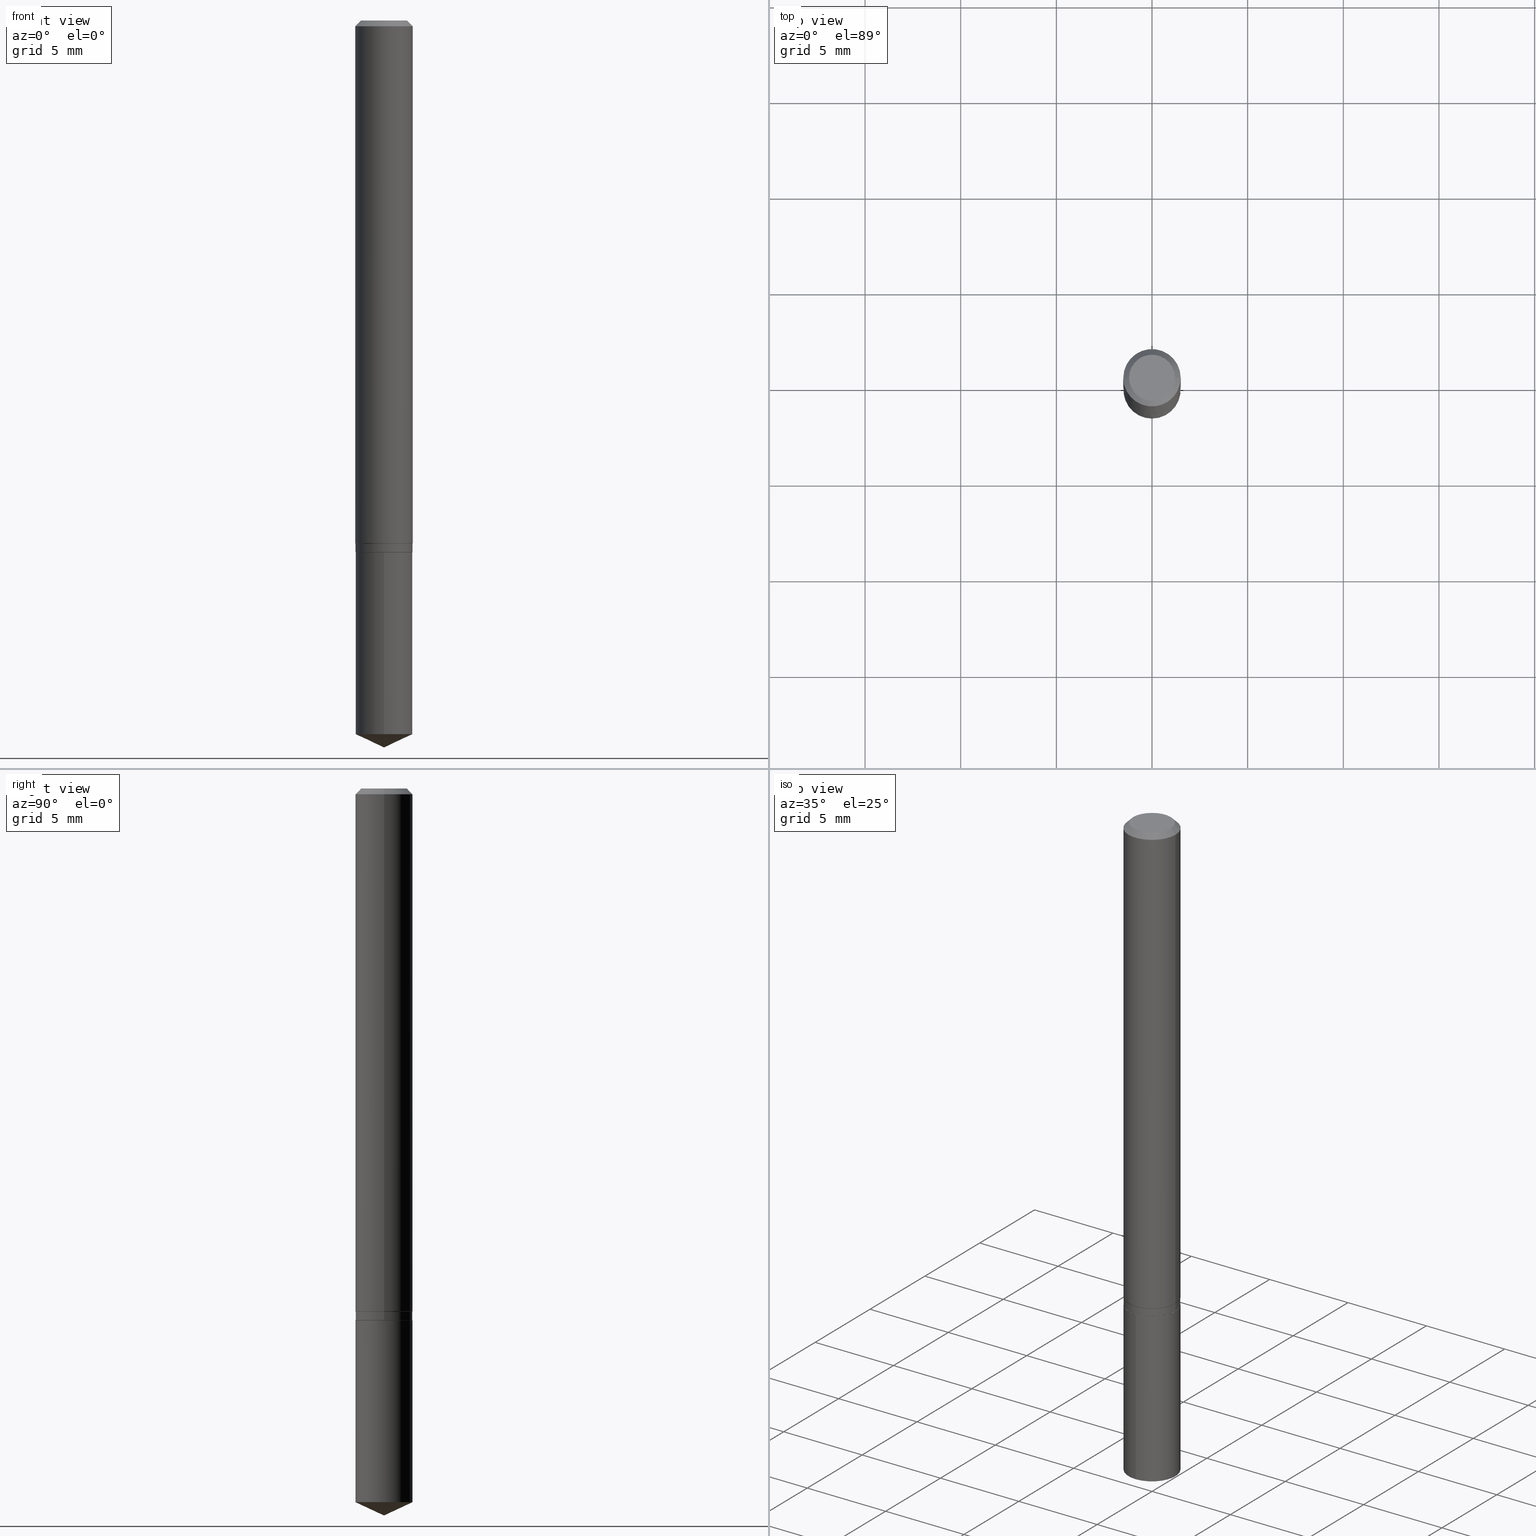
[diagram: canonical four-view strip — front | top / right | iso, engineering-drawing reading convention]
A machine part, canonical four-view strip (front | top / right | iso — engineering-drawing reading convention). The complete STEP part file that produces these views, byte-faithful:
ISO-10303-21;
HEADER;
FILE_DESCRIPTION (( 'STEP AP203' ),
    '1' );
FILE_NAME ('08062.STEP',
    '2024-04-24T10:20:33',
    ( '' ),
    ( '' ),
    'SwSTEP 2.0',
    'SolidWorks 2023',
    '' );
FILE_SCHEMA (( 'CONFIG_CONTROL_DESIGN' ));
ENDSEC;

DATA;
#1 = ORIENTED_EDGE ( 'NONE', *, *, #60, .F. ) ;
#2 = AXIS2_PLACEMENT_3D ( 'NONE', #42, #465, #420 ) ;
#3 = AXIS2_PLACEMENT_3D ( 'NONE', #48, #81, #14 ) ;
#4 = DIRECTION ( 'NONE',  ( 1.000000000000000000, -6.982962677686266711E-15, 4.876176775795935793E-29 ) ) ;
#5 = VERTEX_POINT ( 'NONE', #102 ) ;
#6 = FACE_OUTER_BOUND ( 'NONE', #391, .T. ) ;
#7 = CARTESIAN_POINT ( 'NONE',  ( 2.675342873966538993E-29, -3.819680584694400481E-15, -1.093999999999999861 ) ) ;
#8 = EDGE_CURVE ( 'NONE', #5, #421, #255, .T. ) ;
#9 = CC_DESIGN_APPROVAL ( #419, ( #370 ) ) ;
#10 = LINE ( 'NONE', #344, #199 ) ;
#11 = FACE_OUTER_BOUND ( 'NONE', #142, .T. ) ;
#12 = FACE_OUTER_BOUND ( 'NONE', #114, .T. ) ;
#13 =( NAMED_UNIT ( * ) SI_UNIT ( $, .STERADIAN. ) SOLID_ANGLE_UNIT ( ) );
#14 = DIRECTION ( 'NONE',  ( 1.000000000000000000, -6.982962677686266711E-15, 0.000000000000000000 ) ) ;
#15 = EDGE_CURVE ( 'NONE', #5, #416, #272, .T. ) ;
#16 = EDGE_LOOP ( 'NONE', ( #341, #265, #144, #307 ) ) ;
#17 = CARTESIAN_POINT ( 'NONE',  ( 0.05815000000000000030, -4.227485605071278703E-15, -1.094499999999999806 ) ) ;
#18 = PERSON ( 'UNSPECIFIED', 'UNSPECIFIED', 'UNSPECIFIED', ('UNSPECIFIED'), ('UNSPECIFIED'), ('UNSPECIFIED') ) ;
#19 = CARTESIAN_POINT ( 'NONE',  ( 4.132873053354867254E-48, -5.900647395337818946E-34, -1.690012582823346072E-19 ) ) ;
#20 = AXIS2_PLACEMENT_3D ( 'NONE', #448, #99, #246 ) ;
#21 = CIRCLE ( 'NONE', #425, 0.04724000000000000421 ) ;
#22 = AXIS2_PLACEMENT_3D ( 'NONE', #484, #192, #224 ) ;
#23 = CARTESIAN_POINT ( 'NONE',  ( 0.04724000000000000421, -3.852183633974369345E-16, -3.380025165621689721E-19 ) ) ;
#24 = CARTESIAN_POINT ( 'NONE',  ( -4.095507610462727564E-16, -0.05865000000000382407, -1.094499999999999806 ) ) ;
#25 = DIRECTION ( 'NONE',  ( -6.982962677686266711E-15, -1.000000000000000000, 4.657882342138556398E-15 ) ) ;
#26 = CARTESIAN_POINT ( 'NONE',  ( 0.000000000000000000, 0.000000000000000000, 0.000000000000000000 ) ) ;
#27 = EDGE_CURVE ( 'NONE', #421, #469, #29, .T. ) ;
#28 = FACE_OUTER_BOUND ( 'NONE', #45, .T. ) ;
#29 = CIRCLE ( 'NONE', #408, 0.05904999999999999832 ) ;
#30 = AXIS2_PLACEMENT_3D ( 'NONE', #374, #157, #118 ) ;
#31 = DATE_AND_TIME ( #127, #182 ) ;
#32 = DIRECTION ( 'NONE',  ( -2.445468806185136597E-29, 3.491481338843145583E-15, 1.000000000000000000 ) ) ;
#33 = EDGE_CURVE ( 'NONE', #35, #395, #451, .T. ) ;
#34 = ORIENTED_EDGE ( 'NONE', *, *, #233, .T. ) ;
#35 = VERTEX_POINT ( 'NONE', #50 ) ;
#36 = VERTEX_POINT ( 'NONE', #342 ) ;
#37 = DIRECTION ( 'NONE',  ( -2.445468806185136597E-29, 3.491481338843145583E-15, 1.000000000000000000 ) ) ;
#38 = EDGE_CURVE ( 'NONE', #338, #345, #73, .T. ) ;
#39 = UNCERTAINTY_MEASURE_WITH_UNIT (LENGTH_MEASURE( 1.000000000000000082E-05 ), #277, 'distance_accuracy_value', 'NONE');
#40 = MANIFOLD_SOLID_BREP ( 'Body-Move/Copy2[2]', #375 ) ;
#41 = CONICAL_SURFACE ( 'NONE', #386, 84.42940631927464779, 1.134464013796317339 ) ;
#42 = CARTESIAN_POINT ( 'NONE',  ( 2.629874711847569315E-29, -3.754764099500085778E-15, -1.075407179676971969 ) ) ;
#43 = ORIENTED_EDGE ( 'NONE', *, *, #325, .F. ) ;
#44 = MANIFOLD_SOLID_BREP ( 'Body-Move/Copy2[1]', #293 ) ;
#45 = EDGE_LOOP ( 'NONE', ( #429, #105 ) ) ;
#46 = ADVANCED_FACE ( 'NONE', ( #120 ), #227, .T. ) ;
#47 = DIRECTION ( 'NONE',  ( 1.000000000000000000, -6.982962677686266711E-15, 4.876176775795936353E-29 ) ) ;
#48 = CARTESIAN_POINT ( 'NONE',  ( 2.676565608369631234E-29, -3.821426325363821984E-15, -1.094499999999999806 ) ) ;
#49 = LOCAL_TIME ( 6, 20, 33.00000000000000000, #230 ) ;
#50 = CARTESIAN_POINT ( 'NONE',  ( 0.05865000000000000074, -4.169527014846483207E-15, -1.076899999999999968 ) ) ;
#51 = DIRECTION ( 'NONE',  ( -6.982962677686266711E-15, -1.000000000000000000, 2.328941171069278199E-15 ) ) ;
#52 = DIRECTION ( 'NONE',  ( -2.445458899330790108E-29, 3.491495526022433205E-15, 1.000000000000000000 ) ) ;
#53 = ORIENTED_EDGE ( 'NONE', *, *, #412, .T. ) ;
#54 = APPROVAL_ROLE ( '' ) ;
#55 = FACE_OUTER_BOUND ( 'NONE', #76, .T. ) ;
#56 = CIRCLE ( 'NONE', #252, 0.05865000000000000074 ) ;
#57 = AXIS2_PLACEMENT_3D ( 'NONE', #406, #52, #326 ) ;
#58 = EDGE_LOOP ( 'NONE', ( #43, #454, #34, #466 ) ) ;
#59 = FACE_OUTER_BOUND ( 'NONE', #424, .T. ) ;
#60 = EDGE_CURVE ( 'NONE', #254, #110, #259, .T. ) ;
#61 = ORIENTED_EDGE ( 'NONE', *, *, #27, .T. ) ;
#62 = CARTESIAN_POINT ( 'NONE',  ( 2.675342873966538993E-29, -3.819680584694400481E-15, -1.093999999999999861 ) ) ;
#63 = ADVANCED_FACE ( 'NONE', ( #381 ), #93, .T. ) ;
#64 = AXIS2_PLACEMENT_3D ( 'NONE', #168, #138, #292 ) ;
#65 = CIRCLE ( 'NONE', #301, 0.05865000000000000074 ) ;
#66 = ORGANIZATION ( 'UNSPECIFIED', 'UNSPECIFIED', '' ) ;
#67 = ORIENTED_EDGE ( 'NONE', *, *, #173, .F. ) ;
#68 = ORIENTED_EDGE ( 'NONE', *, *, #131, .T. ) ;
#69 = CC_DESIGN_PERSON_AND_ORGANIZATION_ASSIGNMENT ( #121, #226, ( #244 ) ) ;
#70 = DIRECTION ( 'NONE',  ( -2.445458899330790108E-29, 3.491495526022433205E-15, 1.000000000000000000 ) ) ;
#71 = ORIENTED_EDGE ( 'NONE', *, *, #371, .F. ) ;
#72 = CARTESIAN_POINT ( 'NONE',  ( 2.888098660104663766E-31, -4.123439461173779647E-17, -0.01181000000000007044 ) ) ;
#73 = CIRCLE ( 'NONE', #357, 0.05905000000000013016 ) ;
#74 = CYLINDRICAL_SURFACE ( 'NONE', #436, 0.05905000000000006771 ) ;
#75 = ADVANCED_FACE ( 'NONE', ( #6 ), #328, .T. ) ;
#76 = EDGE_LOOP ( 'NONE', ( #197, #410 ) ) ;
#77 = CARTESIAN_POINT ( 'NONE',  ( 2.888098660104663766E-31, -4.123439461173779647E-17, -0.01181000000000007044 ) ) ;
#78 = APPROVAL ( #245, 'UNSPECIFIED' ) ;
#79 = ORIENTED_EDGE ( 'NONE', *, *, #449, .F. ) ;
#80 = CARTESIAN_POINT ( 'NONE',  ( 2.676565608369631794E-29, -3.821426325363822773E-15, -1.094499999999999806 ) ) ;
#81 = DIRECTION ( 'NONE',  ( -2.445468806185136597E-29, 3.491481338843145583E-15, 1.000000000000000000 ) ) ;
#82 = AXIS2_PLACEMENT_3D ( 'NONE', #72, #185, #225 ) ;
#83 = CARTESIAN_POINT ( 'NONE',  ( 4.167333145233346575E-16, 0.05864999999999617741, -1.094500000000000028 ) ) ;
#84 = ORIENTED_EDGE ( 'NONE', *, *, #33, .T. ) ;
#85 = EDGE_CURVE ( 'NONE', #258, #110, #141, .T. ) ;
#86 = CARTESIAN_POINT ( 'NONE',  ( 2.676565608369631794E-29, -3.821426325363822773E-15, -1.094499999999999806 ) ) ;
#87 = LINE ( 'NONE', #318, #418 ) ;
#88 = ORIENTED_EDGE ( 'NONE', *, *, #15, .F. ) ;
#89 = DIRECTION ( 'NONE',  ( 1.000000000000000000, -6.982962677686266711E-15, 0.000000000000000000 ) ) ;
#90 = APPLICATION_PROTOCOL_DEFINITION ( 'international standard', 'config_control_design', 1994, #329 ) ;
#91 = VECTOR ( 'NONE', #361, 39.37007874015748143 ) ;
#92 = DIRECTION ( 'NONE',  ( -2.445468806185136597E-29, 3.491481338843145583E-15, 1.000000000000000000 ) ) ;
#93 = CONICAL_SURFACE ( 'NONE', #82, 0.05904999999999999832, 0.7853981633974452814 ) ;
#94 = COORDINATED_UNIVERSAL_TIME_OFFSET ( 5, 0, .BEHIND. ) ;
#95 = AXIS2_PLACEMENT_3D ( 'NONE', #450, #166, #283 ) ;
#96 = ADVANCED_FACE ( 'NONE', ( #348 ), #41, .T. ) ;
#97 = CARTESIAN_POINT ( 'NONE',  ( 4.471846062347433444E-29, -1.250482534249861610E-15, -1.094499999999999806 ) ) ;
#98 = SECURITY_CLASSIFICATION_LEVEL ( 'unclassified' ) ;
#99 = DIRECTION ( 'NONE',  ( -2.445468806185136597E-29, 3.491481338843145583E-15, 1.000000000000000000 ) ) ;
#100 = PRODUCT_DEFINITION_SHAPE ( 'NONE', 'NONE',  #244 ) ;
#101 = AXIS2_PLACEMENT_3D ( 'NONE', #215, #37, #4 ) ;
#102 = CARTESIAN_POINT ( 'NONE',  ( -0.04724000000000000421, 3.504923541997677355E-16, -3.380025165670481712E-19 ) ) ;
#103 = CIRCLE ( 'NONE', #488, 0.05815000000000000030 ) ;
#104 = DIRECTION ( 'NONE',  ( -2.445468806185136597E-29, 3.491481338843145583E-15, 1.000000000000000000 ) ) ;
#105 = ORIENTED_EDGE ( 'NONE', *, *, #208, .T. ) ;
#106 = ORIENTED_EDGE ( 'NONE', *, *, #367, .T. ) ;
#107 = DIRECTION ( 'NONE',  ( 1.000000000000000000, -6.982962677686267499E-15, 0.000000000000000000 ) ) ;
#108 = AXIS2_PLACEMENT_3D ( 'NONE', #7, #151, #308 ) ;
#109 = ADVANCED_FACE ( 'NONE', ( #263 ), #452, .T. ) ;
#110 = VERTEX_POINT ( 'NONE', #312 ) ;
#111 = ORIENTED_EDGE ( 'NONE', *, *, #334, .F. ) ;
#112 = EDGE_CURVE ( 'NONE', #345, #338, #426, .T. ) ;
#113 = FACE_OUTER_BOUND ( 'NONE', #339, .T. ) ;
#114 = EDGE_LOOP ( 'NONE', ( #207, #178, #337, #253 ) ) ;
#115 = AXIS2_PLACEMENT_3D ( 'NONE', #444, #232, #331 ) ;
#116 = APPROVAL_PERSON_ORGANIZATION ( #236, #415, #445 ) ;
#117 = DIRECTION ( 'NONE',  ( -6.982962677686267499E-15, -1.000000000000000000, 3.520397390770440854E-15 ) ) ;
#118 = DIRECTION ( 'NONE',  ( -6.982962677686266711E-15, -1.000000000000000000, 2.328941171069278199E-15 ) ) ;
#119 = DIRECTION ( 'NONE',  ( 1.000000000000000000, -6.982962677686266711E-15, 0.000000000000000000 ) ) ;
#120 = FACE_OUTER_BOUND ( 'NONE', #368, .T. ) ;
#121 = PERSON_AND_ORGANIZATION ( #18, #66 ) ;
#122 = ADVANCED_FACE ( 'NONE', ( #113 ), #74, .T. ) ;
#123 = AXIS2_PLACEMENT_3D ( 'NONE', #97, #130, #474 ) ;
#124 = PRODUCT_DEFINITION_FORMATION_WITH_SPECIFIED_SOURCE ( 'ANY', '', #291, .NOT_KNOWN. ) ;
#125 = PERSON_AND_ORGANIZATION_ROLE ( 'creator' ) ;
#126 = LINE ( 'NONE', #169, #181 ) ;
#127 = CALENDAR_DATE ( 2024, 24, 4 ) ;
#128 = EDGE_LOOP ( 'NONE', ( #431, #382, #300, #456 ) ) ;
#129 = LINE ( 'NONE', #17, #411 ) ;
#130 = DIRECTION ( 'NONE',  ( -2.438088387897960049E-29, 3.491481338843145188E-15, 1.000000000000000000 ) ) ;
#131 = EDGE_CURVE ( 'NONE', #395, #345, #10, .T. ) ;
#132 = LINE ( 'NONE', #332, #146 ) ;
#133 = FACE_OUTER_BOUND ( 'NONE', #470, .T. ) ;
#134 = CONICAL_SURFACE ( 'NONE', #409, 0.05865000000000000074, 0.2617993877991601770 ) ;
#135 = AXIS2_PLACEMENT_3D ( 'NONE', #413, #104, #414 ) ;
#136 = CARTESIAN_POINT ( 'NONE',  ( 2.888098660104663766E-31, -4.123439461173779647E-17, -0.01181000000000007044 ) ) ;
#137 = VERTEX_POINT ( 'NONE', #471 ) ;
#138 = DIRECTION ( 'NONE',  ( -2.445468806185136597E-29, 3.491481338843145583E-15, 1.000000000000000000 ) ) ;
#139 = CC_DESIGN_DATE_AND_TIME_ASSIGNMENT ( #290, #206, ( #370 ) ) ;
#140 = CARTESIAN_POINT ( 'NONE',  ( -0.05905000000000013016, -3.335188614033745102E-15, -1.075407179676971969 ) ) ;
#141 = CIRCLE ( 'NONE', #108, 0.05865000000000000074 ) ;
#142 = EDGE_LOOP ( 'NONE', ( #1, #220, #184, #372 ) ) ;
#143 = EDGE_CURVE ( 'NONE', #231, #248, #369, .T. ) ;
#144 = ORIENTED_EDGE ( 'NONE', *, *, #449, .T. ) ;
#145 = AXIS2_PLACEMENT_3D ( 'NONE', #392, #195, #89 ) ;
#146 = VECTOR ( 'NONE', #321, 39.37007874015748143 ) ;
#147 = ORIENTED_EDGE ( 'NONE', *, *, #208, .F. ) ;
#148 = DIRECTION ( 'NONE',  ( -2.445458899330790108E-29, 3.491495526022433599E-15, 1.000000000000000000 ) ) ;
#149 = EDGE_CURVE ( 'NONE', #373, #248, #306, .T. ) ;
#150 = CARTESIAN_POINT ( 'NONE',  ( -9.261924752013118283E-28, 1.322368428517963298E-13, 37.87397874015748300 ) ) ;
#151 = DIRECTION ( 'NONE',  ( -2.445468806185136597E-29, 3.491481338843145583E-15, 1.000000000000000000 ) ) ;
#152 = CARTESIAN_POINT ( 'NONE',  ( 0.05865000000000000074, -4.095507610462995284E-16, 2.859877679004316508E-30 ) ) ;
#153 = AXIS2_PLACEMENT_3D ( 'NONE', #86, #242, #51 ) ;
#154 = DIRECTION ( 'NONE',  ( -0.2588190451025311201, 5.211531920934610206E-15, 0.9659258262890655367 ) ) ;
#155 = ORIENTED_EDGE ( 'NONE', *, *, #334, .T. ) ;
#156 = CARTESIAN_POINT ( 'NONE',  ( -0.05865000000000000074, -3.373095104723992970E-15, -1.076899999999999968 ) ) ;
#157 = DIRECTION ( 'NONE',  ( -2.445458899330790108E-29, 3.491495526022433205E-15, 1.000000000000000000 ) ) ;
#158 = ADVANCED_FACE ( 'NONE', ( #432 ), #189, .T. ) ;
#159 = DIRECTION ( 'NONE',  ( 1.000000000000000000, -6.982962677686266711E-15, 4.876176775795935793E-29 ) ) ;
#160 = CARTESIAN_POINT ( 'NONE',  ( -0.05865000000000000074, 4.167333145232987643E-16, -2.884955430434502470E-30 ) ) ;
#161 = CARTESIAN_POINT ( 'NONE',  ( 8.265746106709734507E-48, -1.180129479067563789E-33, -3.380025165646692144E-19 ) ) ;
#162 = PERSON_AND_ORGANIZATION ( #18, #66 ) ;
#163 = PERSON_AND_ORGANIZATION ( #18, #66 ) ;
#164 = ADVANCED_FACE ( 'NONE', ( #12 ), #472, .T. ) ;
#165 = PERSON_AND_ORGANIZATION ( #18, #66 ) ;
#166 = DIRECTION ( 'NONE',  ( 0.000000000000000000, 0.000000000000000000, 1.000000000000000000 ) ) ;
#167 = CARTESIAN_POINT ( 'NONE',  ( 2.633525357380773366E-29, -3.759976253800183481E-15, -1.076899999999999968 ) ) ;
#168 = CARTESIAN_POINT ( 'NONE',  ( 8.265746106709734507E-48, -1.180129479067563789E-33, -3.380025165646692144E-19 ) ) ;
#169 = CARTESIAN_POINT ( 'NONE',  ( -0.05905000000000006771, 4.195754854663396409E-16, -2.904631170795525045E-30 ) ) ;
#170 = PLANE ( 'NONE',  #22 ) ;
#171 = PERSON_AND_ORGANIZATION ( #18, #66 ) ;
#172 = APPROVAL_DATE_TIME ( #31, #419 ) ;
#173 = EDGE_CURVE ( 'NONE', #137, #373, #65, .T. ) ;
#174 = CIRCLE ( 'NONE', #284, 0.05865000000000000074 ) ;
#175 = CC_DESIGN_SECURITY_CLASSIFICATION ( #370, ( #124 ) ) ;
#176 = EDGE_CURVE ( 'NONE', #395, #35, #56, .T. ) ;
#177 = LINE ( 'NONE', #350, #349 ) ;
#178 = ORIENTED_EDGE ( 'NONE', *, *, #399, .T. ) ;
#179 = DIRECTION ( 'NONE',  ( -2.445458899330790108E-29, 3.491495526022433205E-15, 1.000000000000000000 ) ) ;
#180 = ADVANCED_FACE ( 'NONE', ( #59 ), #438, .F. ) ;
#181 = VECTOR ( 'NONE', #404, 39.37007874015748143 ) ;
#182 = LOCAL_TIME ( 6, 20, 33.00000000000000000, #359 ) ;
#183 = DIRECTION ( 'NONE',  ( -2.445468806185136597E-29, 3.491481338843145583E-15, 1.000000000000000000 ) ) ;
#184 = ORIENTED_EDGE ( 'NONE', *, *, #379, .T. ) ;
#185 = DIRECTION ( 'NONE',  ( 2.445468806185136597E-29, -3.491481338843145583E-15, -1.000000000000000000 ) ) ;
#186 = DIRECTION ( 'NONE',  ( -0.7071067811866199593, 7.493145998870616062E-15, 0.7071067811864750752 ) ) ;
#187 = AXIS2_PLACEMENT_3D ( 'NONE', #19, #238, #478 ) ;
#188 = EDGE_CURVE ( 'NONE', #36, #373, #483, .T. ) ;
#189 = CYLINDRICAL_SURFACE ( 'NONE', #210, 0.05865000000000000074 ) ;
#190 = CALENDAR_DATE ( 2024, 24, 4 ) ;
#191 = CYLINDRICAL_SURFACE ( 'NONE', #219, 0.05865000000000000074 ) ;
#192 = DIRECTION ( 'NONE',  ( 2.445458899330789267E-29, -3.491495526022433599E-15, -1.000000000000000000 ) ) ;
#193 = DATE_AND_TIME ( #190, #49 ) ;
#194 = ORIENTED_EDGE ( 'NONE', *, *, #38, .F. ) ;
#195 = DIRECTION ( 'NONE',  ( -2.445468806185136597E-29, 3.491481338843145583E-15, 1.000000000000000000 ) ) ;
#196 = APPLICATION_PROTOCOL_DEFINITION ( 'international standard', 'config_control_design', 1994, #256 ) ;
#197 = ORIENTED_EDGE ( 'NONE', *, *, #15, .T. ) ;
#198 = AXIS2_PLACEMENT_3D ( 'NONE', #385, #430, #377 ) ;
#199 = VECTOR ( 'NONE', #154, 39.37007874015748143 ) ;
#200 = CYLINDRICAL_SURFACE ( 'NONE', #115, 0.05865000000000000074 ) ;
#201 = CALENDAR_DATE ( 2024, 24, 4 ) ;
#202 = CARTESIAN_POINT ( 'NONE',  ( 0.05865000000000000074, -4.229231345740700206E-15, -1.093999999999999861 ) ) ;
#203 = CALENDAR_DATE ( 2024, 24, 4 ) ;
#204 = ORIENTED_EDGE ( 'NONE', *, *, #173, .T. ) ;
#205 = ADVANCED_FACE ( 'NONE', ( #271 ), #134, .T. ) ;
#206 = DATE_TIME_ROLE ( 'classification_date' ) ;
#207 = ORIENTED_EDGE ( 'NONE', *, *, #85, .T. ) ;
#208 = EDGE_CURVE ( 'NONE', #248, #231, #335, .T. ) ;
#209 = ORIENTED_EDGE ( 'NONE', *, *, #176, .F. ) ;
#210 = AXIS2_PLACEMENT_3D ( 'NONE', #80, #179, #351 ) ;
#211 = LOCAL_TIME ( 6, 20, 33.00000000000000000, #398 ) ;
#212 = ORIENTED_EDGE ( 'NONE', *, *, #346, .F. ) ;
#213 = PRODUCT_RELATED_PRODUCT_CATEGORY ( 'detail', '', ( #291 ) ) ;
#214 = ORIENTED_EDGE ( 'NONE', *, *, #218, .T. ) ;
#215 = CARTESIAN_POINT ( 'NONE',  ( 0.000000000000000000, 0.000000000000000000, 0.000000000000000000 ) ) ;
#216 = ORIENTED_EDGE ( 'NONE', *, *, #399, .F. ) ;
#217 = CARTESIAN_POINT ( 'NONE',  ( 2.629874711847569315E-29, -3.754764099500085778E-15, -1.075407179676971969 ) ) ;
#218 = EDGE_CURVE ( 'NONE', #345, #421, #126, .T. ) ;
#219 = AXIS2_PLACEMENT_3D ( 'NONE', #353, #92, #159 ) ;
#220 = ORIENTED_EDGE ( 'NONE', *, *, #422, .T. ) ;
#221 = CARTESIAN_POINT ( 'NONE',  ( 4.167333145233254377E-16, 0.05864999999999617741, -1.094500000000000028 ) ) ;
#222 = ORIENTED_EDGE ( 'NONE', *, *, #412, .F. ) ;
#223 = CARTESIAN_POINT ( 'NONE',  ( 0.000000000000000000, 0.000000000000000000, 0.000000000000000000 ) ) ;
#224 = DIRECTION ( 'NONE',  ( 6.982962677686265922E-15, 1.000000000000000000, -3.491495526022433599E-15 ) ) ;
#225 = DIRECTION ( 'NONE',  ( -1.000000000000000000, 6.982962677686266711E-15, 0.000000000000000000 ) ) ;
#226 = PERSON_AND_ORGANIZATION_ROLE ( 'creator' ) ;
#227 = CONICAL_SURFACE ( 'NONE', #309, 84.42940631927464779, 1.134464013796317339 ) ;
#228 = CARTESIAN_POINT ( 'NONE',  ( -0.05904999999999999832, -1.478423761589571274E-15, -0.01181000000000007044 ) ) ;
#229 = APPROVAL_PERSON_ORGANIZATION ( #165, #419, #286 ) ;
#230 = COORDINATED_UNIVERSAL_TIME_OFFSET ( 5, 0, .BEHIND. ) ;
#231 = VERTEX_POINT ( 'NONE', #317 ) ;
#232 = DIRECTION ( 'NONE',  ( -2.445458899330790108E-29, 3.491495526022433205E-15, 1.000000000000000000 ) ) ;
#233 = EDGE_CURVE ( 'NONE', #469, #421, #365, .T. ) ;
#234 = LINE ( 'NONE', #160, #273 ) ;
#235 = FACE_OUTER_BOUND ( 'NONE', #482, .T. ) ;
#236 = PERSON_AND_ORGANIZATION ( #18, #66 ) ;
#237 = CONICAL_SURFACE ( 'NONE', #135, 0.05815000000000000030, 0.7853981633975507526 ) ;
#238 = DIRECTION ( 'NONE',  ( 2.438088387897960049E-29, -3.491481338843145188E-15, -1.000000000000000000 ) ) ;
#239 = CARTESIAN_POINT ( 'NONE',  ( 0.05815000000000000030, -4.227485605071278703E-15, -1.094499999999999806 ) ) ;
#240 = PERSON_AND_ORGANIZATION_ROLE ( 'classification_officer' ) ;
#241 = EDGE_LOOP ( 'NONE', ( #212, #88, #262, #61 ) ) ;
#242 = DIRECTION ( 'NONE',  ( -2.445458899330790108E-29, 3.491495526022433205E-15, 1.000000000000000000 ) ) ;
#243 = ORIENTED_EDGE ( 'NONE', *, *, #422, .F. ) ;
#244 = PRODUCT_DEFINITION ( 'UNKNOWN', '', #124, #458 ) ;
#245 = APPROVAL_STATUS ( 'not_yet_approved' ) ;
#246 = DIRECTION ( 'NONE',  ( 1.000000000000000000, -6.982962677686267499E-15, 0.000000000000000000 ) ) ;
#247 =( GEOMETRIC_REPRESENTATION_CONTEXT ( 3 ) GLOBAL_UNCERTAINTY_ASSIGNED_CONTEXT ( ( #39 ) ) GLOBAL_UNIT_ASSIGNED_CONTEXT ( ( #277, #387, #13 ) ) REPRESENTATION_CONTEXT ( 'NONE', 'WORKASPACE' ) );
#248 = VERTEX_POINT ( 'NONE', #83 ) ;
#249 = ORIENTED_EDGE ( 'NONE', *, *, #340, .T. ) ;
#250 = ORIENTED_EDGE ( 'NONE', *, *, #27, .F. ) ;
#251 = LINE ( 'NONE', #295, #296 ) ;
#252 = AXIS2_PLACEMENT_3D ( 'NONE', #167, #281, #439 ) ;
#253 = ORIENTED_EDGE ( 'NONE', *, *, #490, .F. ) ;
#254 = VERTEX_POINT ( 'NONE', #480 ) ;
#255 = LINE ( 'NONE', #333, #91 ) ;
#256 = APPLICATION_CONTEXT ( 'configuration controlled 3d designs of mechanical parts and assemblies' ) ;
#257 = DIRECTION ( 'NONE',  ( 2.445468806185136597E-29, -3.491481338843145583E-15, -1.000000000000000000 ) ) ;
#258 = VERTEX_POINT ( 'NONE', #202 ) ;
#259 = LINE ( 'NONE', #423, #481 ) ;
#260 = VECTOR ( 'NONE', #148, 39.37007874015748143 ) ;
#261 = VECTOR ( 'NONE', #264, 39.37007874015748143 ) ;
#262 = ORIENTED_EDGE ( 'NONE', *, *, #8, .T. ) ;
#263 = FACE_OUTER_BOUND ( 'NONE', #241, .T. ) ;
#264 = DIRECTION ( 'NONE',  ( -2.445468806185136877E-29, 3.491481338843145188E-15, 1.000000000000000000 ) ) ;
#265 = ORIENTED_EDGE ( 'NONE', *, *, #176, .T. ) ;
#266 = DIRECTION ( 'NONE',  ( -2.445458899330790108E-29, 3.491495526022433205E-15, 1.000000000000000000 ) ) ;
#267 = APPROVAL_DATE_TIME ( #302, #415 ) ;
#268 =( LENGTH_UNIT ( ) NAMED_UNIT ( * ) SI_UNIT ( $, .METRE. ) );
#269 = ORIENTED_EDGE ( 'NONE', *, *, #38, .T. ) ;
#270 = DIRECTION ( 'NONE',  ( -2.445468806185136877E-29, 3.491481338843145188E-15, 1.000000000000000000 ) ) ;
#271 = FACE_OUTER_BOUND ( 'NONE', #16, .T. ) ;
#272 = CIRCLE ( 'NONE', #64, 0.04724000000000000421 ) ;
#273 = VECTOR ( 'NONE', #270, 39.37007874015748143 ) ;
#274 = ADVANCED_FACE ( 'NONE', ( #133 ), #200, .T. ) ;
#275 = FACE_OUTER_BOUND ( 'NONE', #407, .T. ) ;
#276 = APPROVAL_DATE_TIME ( #485, #78 ) ;
#277 =( CONVERSION_BASED_UNIT ( 'INCH', #354 ) LENGTH_UNIT ( ) NAMED_UNIT ( #435 ) );
#278 = DIRECTION ( 'NONE',  ( -2.445468806185136597E-29, 3.491481338843145583E-15, 1.000000000000000000 ) ) ;
#279 = PERSON_AND_ORGANIZATION_ROLE ( 'design_owner' ) ;
#280 = DIRECTION ( 'NONE',  ( 0.7071067811866199593, -2.468850131083015945E-15, 0.7071067811864750752 ) ) ;
#281 = DIRECTION ( 'NONE',  ( -2.445468806185136597E-29, 3.491481338843145583E-15, 1.000000000000000000 ) ) ;
#282 = PERSON_AND_ORGANIZATION ( #18, #66 ) ;
#283 = DIRECTION ( 'NONE',  ( 1.000000000000000000, 0.000000000000000000, 0.000000000000000000 ) ) ;
#284 = AXIS2_PLACEMENT_3D ( 'NONE', #62, #32, #107 ) ;
#285 = CARTESIAN_POINT ( 'NONE',  ( 2.633525357380773366E-29, -3.759976253800183481E-15, -1.076899999999999968 ) ) ;
#286 = APPROVAL_ROLE ( '' ) ;
#287 = APPROVAL_STATUS ( 'not_yet_approved' ) ;
#288 = ADVANCED_FACE ( 'NONE', ( #235 ), #363, .T. ) ;
#289 = DIRECTION ( 'NONE',  ( -2.445468806185136597E-29, 3.491481338843145583E-15, 1.000000000000000000 ) ) ;
#290 = DATE_AND_TIME ( #322, #330 ) ;
#291 = PRODUCT ( '08062', '08062', '', ( #327 ) ) ;
#292 = DIRECTION ( 'NONE',  ( 1.000000000000000000, -6.982962677686266711E-15, 4.876185090822587894E-29 ) ) ;
#293 = CLOSED_SHELL ( 'NONE', ( #274, #96, #46, #158, #476 ) ) ;
#294 = ADVANCED_FACE ( 'NONE', ( #275 ), #191, .T. ) ;
#295 = CARTESIAN_POINT ( 'NONE',  ( 0.05904999999999999832, -4.463468013801466955E-16, -0.01181000000000007044 ) ) ;
#296 = VECTOR ( 'NONE', #417, 39.37007874015748143 ) ;
#297 = DIRECTION ( 'NONE',  ( 1.000000000000000000, -6.982962677686266711E-15, 0.000000000000000000 ) ) ;
#298 = ORIENTED_EDGE ( 'NONE', *, *, #440, .T. ) ;
#299 = ORIENTED_EDGE ( 'NONE', *, *, #188, .T. ) ;
#300 = ORIENTED_EDGE ( 'NONE', *, *, #85, .F. ) ;
#301 = AXIS2_PLACEMENT_3D ( 'NONE', #305, #463, #25 ) ;
#302 = DATE_AND_TIME ( #201, #211 ) ;
#303 = ADVANCED_FACE ( 'NONE', ( #55 ), #356, .F. ) ;
#304 = ORIENTED_EDGE ( 'NONE', *, *, #188, .F. ) ;
#305 = CARTESIAN_POINT ( 'NONE',  ( 3.591781183480025262E-29, -5.128122212470508622E-15, -1.468751055849209397 ) ) ;
#306 = LINE ( 'NONE', #221, #260 ) ;
#307 = ORIENTED_EDGE ( 'NONE', *, *, #112, .F. ) ;
#308 = DIRECTION ( 'NONE',  ( 1.000000000000000000, -6.982962677686267499E-15, 0.000000000000000000 ) ) ;
#309 = AXIS2_PLACEMENT_3D ( 'NONE', #150, #70, #347 ) ;
#310 = AXIS2_PLACEMENT_3D ( 'NONE', #315, #479, #119 ) ;
#311 = ORIENTED_EDGE ( 'NONE', *, *, #149, .T. ) ;
#312 = CARTESIAN_POINT ( 'NONE',  ( -0.05865000000000000074, -3.373095104723992970E-15, -1.093999999999999861 ) ) ;
#313 = ORIENTED_EDGE ( 'NONE', *, *, #490, .T. ) ;
#314 = DIRECTION ( 'NONE',  ( -2.445468806185136597E-29, 3.491481338843145583E-15, 1.000000000000000000 ) ) ;
#315 = CARTESIAN_POINT ( 'NONE',  ( 2.676565608369631234E-29, -3.821426325363821984E-15, -1.094499999999999806 ) ) ;
#316 = EDGE_LOOP ( 'NONE', ( #380, #298, #155, #147 ) ) ;
#317 = CARTESIAN_POINT ( 'NONE',  ( -4.095507610462727564E-16, -0.05865000000000382407, -1.094499999999999806 ) ) ;
#318 = CARTESIAN_POINT ( 'NONE',  ( 3.658651059288795076E-29, -5.223626456482161457E-15, -1.496099999999999985 ) ) ;
#319 = CC_DESIGN_APPROVAL ( #78, ( #124 ) ) ;
#320 = DIRECTION ( 'NONE',  ( 1.000000000000000000, -6.982962677686266711E-15, 4.876185090822587894E-29 ) ) ;
#321 = DIRECTION ( 'NONE',  ( 0.2588190451025311201, 1.565188264969544659E-15, 0.9659258262890655367 ) ) ;
#322 = CALENDAR_DATE ( 2024, 24, 4 ) ;
#323 = DIRECTION ( 'NONE',  ( -2.445458899330790108E-29, 3.491495526022433599E-15, 1.000000000000000000 ) ) ;
#324 = CARTESIAN_POINT ( 'NONE',  ( 3.658672935554494692E-29, -5.223595400746700193E-15, -1.496099999999999985 ) ) ;
#325 = EDGE_CURVE ( 'NONE', #416, #5, #21, .T. ) ;
#326 = DIRECTION ( 'NONE',  ( -6.982962677686266711E-15, -1.000000000000000000, 4.657882342138556398E-15 ) ) ;
#327 = MECHANICAL_CONTEXT ( 'NONE', #256, 'mechanical' ) ;
#328 = CONICAL_SURFACE ( 'NONE', #198, 0.05865000000000000074, 0.2617993877991601770 ) ;
#329 = APPLICATION_CONTEXT ( 'configuration controlled 3d designs of mechanical parts and assemblies' ) ;
#330 = LOCAL_TIME ( 6, 20, 33.00000000000000000, #402 ) ;
#331 = DIRECTION ( 'NONE',  ( -6.982962677686266711E-15, -1.000000000000000000, 2.328941171069278199E-15 ) ) ;
#332 = CARTESIAN_POINT ( 'NONE',  ( 0.05865000000000000074, -4.169527014846483207E-15, -1.076899999999999968 ) ) ;
#333 = CARTESIAN_POINT ( 'NONE',  ( -0.05904999999999999832, 3.711095515056362547E-16, -0.01181000000000007044 ) ) ;
#334 = EDGE_CURVE ( 'NONE', #137, #231, #358, .T. ) ;
#335 = CIRCLE ( 'NONE', #153, 0.05865000000000000074 ) ;
#336 = CONICAL_SURFACE ( 'NONE', #310, 0.05815000000000000030, 0.7853981633975507526 ) ;
#337 = ORIENTED_EDGE ( 'NONE', *, *, #33, .F. ) ;
#338 = VERTEX_POINT ( 'NONE', #447 ) ;
#339 = EDGE_LOOP ( 'NONE', ( #269, #214, #464, #477 ) ) ;
#340 = EDGE_CURVE ( 'NONE', #110, #258, #174, .T. ) ;
#341 = ORIENTED_EDGE ( 'NONE', *, *, #131, .F. ) ;
#342 = CARTESIAN_POINT ( 'NONE',  ( 3.658651059288794515E-29, -5.223626456482161457E-15, -1.496099999999999985 ) ) ;
#343 = ORIENTED_EDGE ( 'NONE', *, *, #143, .F. ) ;
#344 = CARTESIAN_POINT ( 'NONE',  ( -0.05865000000000000074, -3.343242939276884470E-15, -1.076899999999999968 ) ) ;
#345 = VERTEX_POINT ( 'NONE', #140 ) ;
#346 = EDGE_CURVE ( 'NONE', #416, #469, #251, .T. ) ;
#347 = DIRECTION ( 'NONE',  ( -6.982962677686267499E-15, -1.000000000000000000, 3.520397390770440854E-15 ) ) ;
#348 = FACE_OUTER_BOUND ( 'NONE', #459, .T. ) ;
#349 = VECTOR ( 'NONE', #384, 39.37007874015748143 ) ;
#350 = CARTESIAN_POINT ( 'NONE',  ( 0.05905000000000006771, -4.123439461173745257E-16, 2.879382386107503723E-30 ) ) ;
#351 = DIRECTION ( 'NONE',  ( -6.982962677686266711E-15, -1.000000000000000000, 2.328941171069278199E-15 ) ) ;
#352 = LINE ( 'NONE', #152, #261 ) ;
#353 = CARTESIAN_POINT ( 'NONE',  ( 0.000000000000000000, 0.000000000000000000, 0.000000000000000000 ) ) ;
#354 = LENGTH_MEASURE_WITH_UNIT ( LENGTH_MEASURE( 0.02539999999999999897 ), #268 );
#355 = CARTESIAN_POINT ( 'NONE',  ( 4.167333145233346575E-16, 0.05864999999999487984, -1.468751055849209841 ) ) ;
#356 = PLANE ( 'NONE',  #187 ) ;
#357 = AXIS2_PLACEMENT_3D ( 'NONE', #217, #314, #383 ) ;
#358 = LINE ( 'NONE', #24, #397 ) ;
#359 = COORDINATED_UNIVERSAL_TIME_OFFSET ( 5, 0, .BEHIND. ) ;
#360 = APPROVAL_STATUS ( 'not_yet_approved' ) ;
#361 = DIRECTION ( 'NONE',  ( -0.7071067811865453523, 2.468850131082234184E-15, -0.7071067811865496822 ) ) ;
#362 = CC_DESIGN_PERSON_AND_ORGANIZATION_ASSIGNMENT ( #366, #240, ( #370 ) ) ;
#363 = CYLINDRICAL_SURFACE ( 'NONE', #376, 0.05905000000000006771 ) ;
#364 = SHAPE_DEFINITION_REPRESENTATION ( #100, #487 ) ;
#365 = CIRCLE ( 'NONE', #145, 0.05904999999999999832 ) ;
#366 = PERSON_AND_ORGANIZATION ( #18, #66 ) ;
#367 = EDGE_CURVE ( 'NONE', #338, #469, #177, .T. ) ;
#368 = EDGE_LOOP ( 'NONE', ( #304, #53, #443 ) ) ;
#369 = CIRCLE ( 'NONE', #30, 0.05865000000000000074 ) ;
#370 = SECURITY_CLASSIFICATION ( '', '', #98 ) ;
#371 = EDGE_CURVE ( 'NONE', #462, #254, #467, .T. ) ;
#372 = ORIENTED_EDGE ( 'NONE', *, *, #340, .F. ) ;
#373 = VERTEX_POINT ( 'NONE', #355 ) ;
#374 = CARTESIAN_POINT ( 'NONE',  ( 2.676565608369631794E-29, -3.821426325363822773E-15, -1.094499999999999806 ) ) ;
#375 = CLOSED_SHELL ( 'NONE', ( #433, #63, #122, #75, #164, #294, #205, #288, #109, #303, #180, #389 ) ) ;
#376 = AXIS2_PLACEMENT_3D ( 'NONE', #26, #396, #434 ) ;
#377 = DIRECTION ( 'NONE',  ( 1.000000000000000000, -6.982962677686267499E-15, 0.000000000000000000 ) ) ;
#378 = CIRCLE ( 'NONE', #57, 0.05865000000000000074 ) ;
#379 = EDGE_CURVE ( 'NONE', #462, #258, #129, .T. ) ;
#380 = ORIENTED_EDGE ( 'NONE', *, *, #149, .F. ) ;
#381 = FACE_OUTER_BOUND ( 'NONE', #58, .T. ) ;
#382 = ORIENTED_EDGE ( 'NONE', *, *, #60, .T. ) ;
#383 = DIRECTION ( 'NONE',  ( 1.000000000000000000, -6.982962677686265133E-15, 0.000000000000000000 ) ) ;
#384 = DIRECTION ( 'NONE',  ( -2.445468806185136877E-29, 3.491481338843145188E-15, 1.000000000000000000 ) ) ;
#385 = CARTESIAN_POINT ( 'NONE',  ( 2.633525357380773366E-29, -3.759976253800183481E-15, -1.076899999999999968 ) ) ;
#386 = AXIS2_PLACEMENT_3D ( 'NONE', #468, #266, #117 ) ;
#387 =( NAMED_UNIT ( * ) PLANE_ANGLE_UNIT ( ) SI_UNIT ( $, .RADIAN. ) );
#388 = ORIENTED_EDGE ( 'NONE', *, *, #112, .T. ) ;
#389 = ADVANCED_FACE ( 'NONE', ( #11 ), #336, .T. ) ;
#390 = DIRECTION ( 'NONE',  ( 6.439704144417032720E-15, 0.9063077870366527122, 0.4226182617406934461 ) ) ;
#391 = EDGE_LOOP ( 'NONE', ( #84, #68, #194, #79 ) ) ;
#392 = CARTESIAN_POINT ( 'NONE',  ( 2.888098660104663766E-31, -4.123439461173779647E-17, -0.01181000000000007044 ) ) ;
#393 = DATE_TIME_ROLE ( 'creation_date' ) ;
#394 = CARTESIAN_POINT ( 'NONE',  ( 2.676565608369631234E-29, -3.821426325363821984E-15, -1.094499999999999806 ) ) ;
#395 = VERTEX_POINT ( 'NONE', #156 ) ;
#396 = DIRECTION ( 'NONE',  ( -2.445468806185136597E-29, 3.491481338843145583E-15, 1.000000000000000000 ) ) ;
#397 = VECTOR ( 'NONE', #323, 39.37007874015748143 ) ;
#398 = COORDINATED_UNIVERSAL_TIME_OFFSET ( 5, 0, .BEHIND. ) ;
#399 = EDGE_CURVE ( 'NONE', #110, #395, #234, .T. ) ;
#400 = APPROVAL_PERSON_ORGANIZATION ( #162, #78, #54 ) ;
#401 = DIRECTION ( 'NONE',  ( -2.445468806185136597E-29, 3.491481338843145583E-15, 1.000000000000000000 ) ) ;
#402 = COORDINATED_UNIVERSAL_TIME_OFFSET ( 5, 0, .BEHIND. ) ;
#403 = FACE_OUTER_BOUND ( 'NONE', #128, .T. ) ;
#404 = DIRECTION ( 'NONE',  ( -2.445468806185136877E-29, 3.491481338843145188E-15, 1.000000000000000000 ) ) ;
#405 = CARTESIAN_POINT ( 'NONE',  ( 0.05904999999999999832, -4.535783407291118600E-16, -0.01181000000000007044 ) ) ;
#406 = CARTESIAN_POINT ( 'NONE',  ( 3.591781183480025262E-29, -5.128122212470508622E-15, -1.468751055849209397 ) ) ;
#407 = EDGE_LOOP ( 'NONE', ( #216, #249, #313, #209 ) ) ;
#408 = AXIS2_PLACEMENT_3D ( 'NONE', #136, #289, #446 ) ;
#409 = AXIS2_PLACEMENT_3D ( 'NONE', #285, #278, #441 ) ;
#410 = ORIENTED_EDGE ( 'NONE', *, *, #325, .T. ) ;
#411 = VECTOR ( 'NONE', #280, 39.37007874015748143 ) ;
#412 = EDGE_CURVE ( 'NONE', #36, #137, #87, .T. ) ;
#413 = CARTESIAN_POINT ( 'NONE',  ( 2.676565608369631234E-29, -3.821426325363821984E-15, -1.094499999999999806 ) ) ;
#414 = DIRECTION ( 'NONE',  ( 1.000000000000000000, -6.982962677686266711E-15, 0.000000000000000000 ) ) ;
#415 = APPROVAL ( #287, 'UNSPECIFIED' ) ;
#416 = VERTEX_POINT ( 'NONE', #23 ) ;
#417 = DIRECTION ( 'NONE',  ( 0.7071067811865453523, -7.319954787623248157E-15, -0.7071067811865496822 ) ) ;
#418 = VECTOR ( 'NONE', #437, 39.37007874015748143 ) ;
#419 = APPROVAL ( #360, 'UNSPECIFIED' ) ;
#420 = DIRECTION ( 'NONE',  ( 1.000000000000000000, -6.982962677686265133E-15, 0.000000000000000000 ) ) ;
#421 = VERTEX_POINT ( 'NONE', #228 ) ;
#422 = EDGE_CURVE ( 'NONE', #254, #462, #103, .T. ) ;
#423 = CARTESIAN_POINT ( 'NONE',  ( -0.05815000000000000030, -3.408245724519323478E-15, -1.094499999999999806 ) ) ;
#424 = EDGE_LOOP ( 'NONE', ( #71, #243 ) ) ;
#425 = AXIS2_PLACEMENT_3D ( 'NONE', #161, #401, #320 ) ;
#426 = CIRCLE ( 'NONE', #2, 0.05905000000000013016 ) ;
#427 = DIRECTION ( 'NONE',  ( -1.000000000000000000, 6.982962677686266711E-15, 0.000000000000000000 ) ) ;
#428 = CC_DESIGN_APPROVAL ( #415, ( #244 ) ) ;
#429 = ORIENTED_EDGE ( 'NONE', *, *, #143, .T. ) ;
#430 = DIRECTION ( 'NONE',  ( -2.445468806185136597E-29, 3.491481338843145583E-15, 1.000000000000000000 ) ) ;
#431 = ORIENTED_EDGE ( 'NONE', *, *, #371, .T. ) ;
#432 = FACE_OUTER_BOUND ( 'NONE', #316, .T. ) ;
#433 = ADVANCED_FACE ( 'NONE', ( #403 ), #237, .T. ) ;
#434 = DIRECTION ( 'NONE',  ( 1.000000000000000000, -6.982962677686266711E-15, 4.876176775795936353E-29 ) ) ;
#435 = DIMENSIONAL_EXPONENTS ( 1.000000000000000000, 0.000000000000000000, 0.000000000000000000, 0.000000000000000000, 0.000000000000000000, 0.000000000000000000, 0.000000000000000000 ) ;
#436 = AXIS2_PLACEMENT_3D ( 'NONE', #223, #183, #47 ) ;
#437 = DIRECTION ( 'NONE',  ( -6.328713451373378845E-15, -0.9063077870366498257, 0.4226182617406997188 ) ) ;
#438 = PLANE ( 'NONE',  #123 ) ;
#439 = DIRECTION ( 'NONE',  ( 1.000000000000000000, -6.982962677686267499E-15, 0.000000000000000000 ) ) ;
#440 = EDGE_CURVE ( 'NONE', #373, #137, #378, .T. ) ;
#441 = DIRECTION ( 'NONE',  ( 1.000000000000000000, -6.982962677686267499E-15, 0.000000000000000000 ) ) ;
#442 = VECTOR ( 'NONE', #390, 39.37007874015749564 ) ;
#443 = ORIENTED_EDGE ( 'NONE', *, *, #440, .F. ) ;
#444 = CARTESIAN_POINT ( 'NONE',  ( 2.676565608369631794E-29, -3.821426325363822773E-15, -1.094499999999999806 ) ) ;
#445 = APPROVAL_ROLE ( '' ) ;
#446 = DIRECTION ( 'NONE',  ( 1.000000000000000000, -6.982962677686266711E-15, 0.000000000000000000 ) ) ;
#447 = CARTESIAN_POINT ( 'NONE',  ( 0.05905000000000013016, -4.167108045617460698E-15, -1.075407179676971969 ) ) ;
#448 = CARTESIAN_POINT ( 'NONE',  ( 2.633525357380773366E-29, -3.759976253800183481E-15, -1.076899999999999968 ) ) ;
#449 = EDGE_CURVE ( 'NONE', #35, #338, #132, .T. ) ;
#450 = CARTESIAN_POINT ( 'NONE',  ( 0.000000000000000000, 0.000000000000000000, 0.000000000000000000 ) ) ;
#451 = CIRCLE ( 'NONE', #20, 0.05865000000000000074 ) ;
#452 = CONICAL_SURFACE ( 'NONE', #460, 0.05904999999999999832, 0.7853981633974452814 ) ;
#453 = CC_DESIGN_PERSON_AND_ORGANIZATION_ASSIGNMENT ( #282, #125, ( #124 ) ) ;
#454 = ORIENTED_EDGE ( 'NONE', *, *, #346, .T. ) ;
#455 = CC_DESIGN_PERSON_AND_ORGANIZATION_ASSIGNMENT ( #163, #279, ( #291 ) ) ;
#456 = ORIENTED_EDGE ( 'NONE', *, *, #379, .F. ) ;
#457 = CC_DESIGN_PERSON_AND_ORGANIZATION_ASSIGNMENT ( #171, #475, ( #124 ) ) ;
#458 = DESIGN_CONTEXT ( 'detailed design', #329, 'design' ) ;
#459 = EDGE_LOOP ( 'NONE', ( #222, #299, #67 ) ) ;
#460 = AXIS2_PLACEMENT_3D ( 'NONE', #77, #257, #427 ) ;
#461 = LOCAL_TIME ( 6, 20, 33.00000000000000000, #94 ) ;
#462 = VERTEX_POINT ( 'NONE', #239 ) ;
#463 = DIRECTION ( 'NONE',  ( -2.445458899330790108E-29, 3.491495526022433205E-15, 1.000000000000000000 ) ) ;
#464 = ORIENTED_EDGE ( 'NONE', *, *, #233, .F. ) ;
#465 = DIRECTION ( 'NONE',  ( -2.445468806185136597E-29, 3.491481338843145583E-15, 1.000000000000000000 ) ) ;
#466 = ORIENTED_EDGE ( 'NONE', *, *, #8, .F. ) ;
#467 = CIRCLE ( 'NONE', #3, 0.05815000000000000030 ) ;
#468 = CARTESIAN_POINT ( 'NONE',  ( -9.261924752013118283E-28, 1.322368428517963298E-13, 37.87397874015748300 ) ) ;
#469 = VERTEX_POINT ( 'NONE', #405 ) ;
#470 = EDGE_LOOP ( 'NONE', ( #204, #311, #343, #111 ) ) ;
#471 = CARTESIAN_POINT ( 'NONE',  ( -4.095507610462636845E-16, -0.05865000000000514246, -1.468751055849209175 ) ) ;
#472 = CYLINDRICAL_SURFACE ( 'NONE', #101, 0.05865000000000000074 ) ;
#473 = DIRECTION ( 'NONE',  ( -2.445468806185136597E-29, 3.491481338843145583E-15, 1.000000000000000000 ) ) ;
#474 = DIRECTION ( 'NONE',  ( 1.000000000000000000, -6.982962677686265922E-15, 4.876176775795935793E-29 ) ) ;
#475 = PERSON_AND_ORGANIZATION_ROLE ( 'design_supplier' ) ;
#476 = ADVANCED_FACE ( 'NONE', ( #28 ), #170, .F. ) ;
#477 = ORIENTED_EDGE ( 'NONE', *, *, #367, .F. ) ;
#478 = DIRECTION ( 'NONE',  ( -1.000000000000000000, 6.982962677686265922E-15, -4.876176775795935793E-29 ) ) ;
#479 = DIRECTION ( 'NONE',  ( -2.445468806185136597E-29, 3.491481338843145583E-15, 1.000000000000000000 ) ) ;
#480 = CARTESIAN_POINT ( 'NONE',  ( -0.05815000000000000030, -3.405596497345212671E-15, -1.094499999999999806 ) ) ;
#481 = VECTOR ( 'NONE', #186, 39.37007874015748143 ) ;
#482 = EDGE_LOOP ( 'NONE', ( #489, #388, #106, #250 ) ) ;
#483 = LINE ( 'NONE', #324, #442 ) ;
#484 = CARTESIAN_POINT ( 'NONE',  ( 2.676565608369631794E-29, -3.821426325363822773E-15, -1.094499999999999806 ) ) ;
#485 = DATE_AND_TIME ( #203, #461 ) ;
#486 = CC_DESIGN_DATE_AND_TIME_ASSIGNMENT ( #193, #393, ( #244 ) ) ;
#487 = ADVANCED_BREP_SHAPE_REPRESENTATION ( '08062', ( #44, #40, #95 ), #247 ) ;
#488 = AXIS2_PLACEMENT_3D ( 'NONE', #394, #473, #297 ) ;
#489 = ORIENTED_EDGE ( 'NONE', *, *, #218, .F. ) ;
#490 = EDGE_CURVE ( 'NONE', #258, #35, #352, .T. ) ;
ENDSEC;
END-ISO-10303-21;
